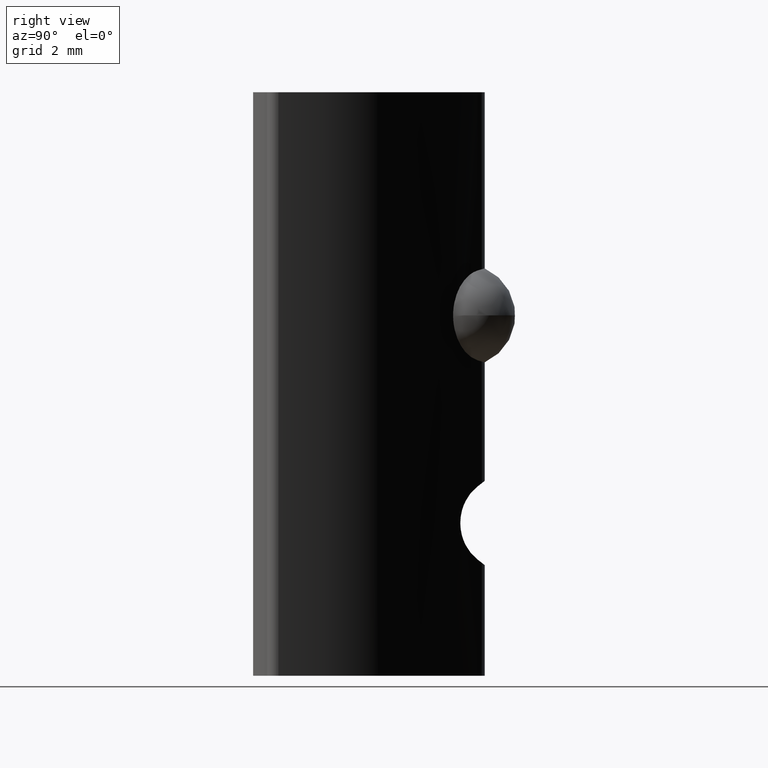
[diagram: clean part render]
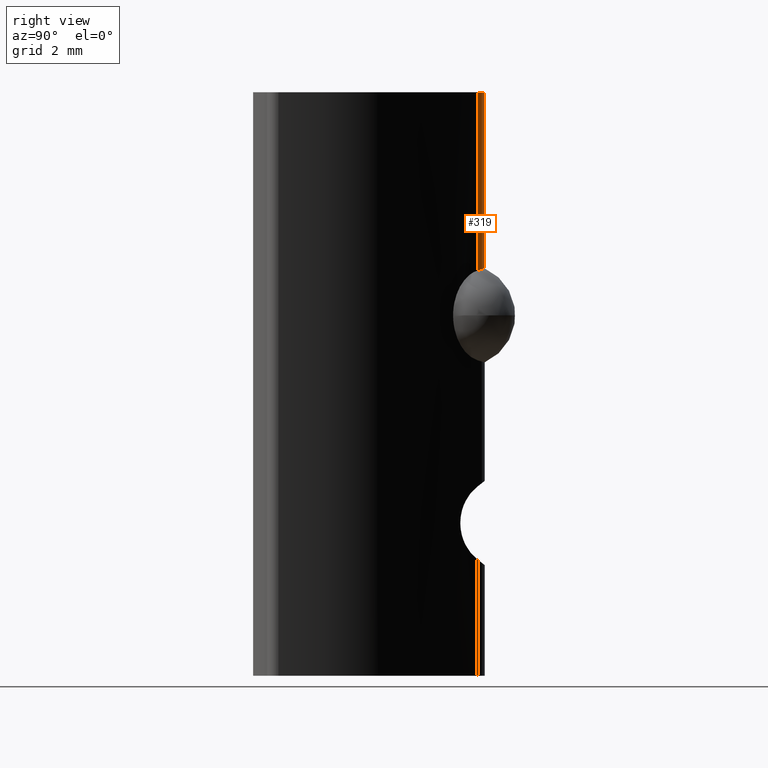
[diagram: same view with one face highlighted and labeled with its STEP entity id]
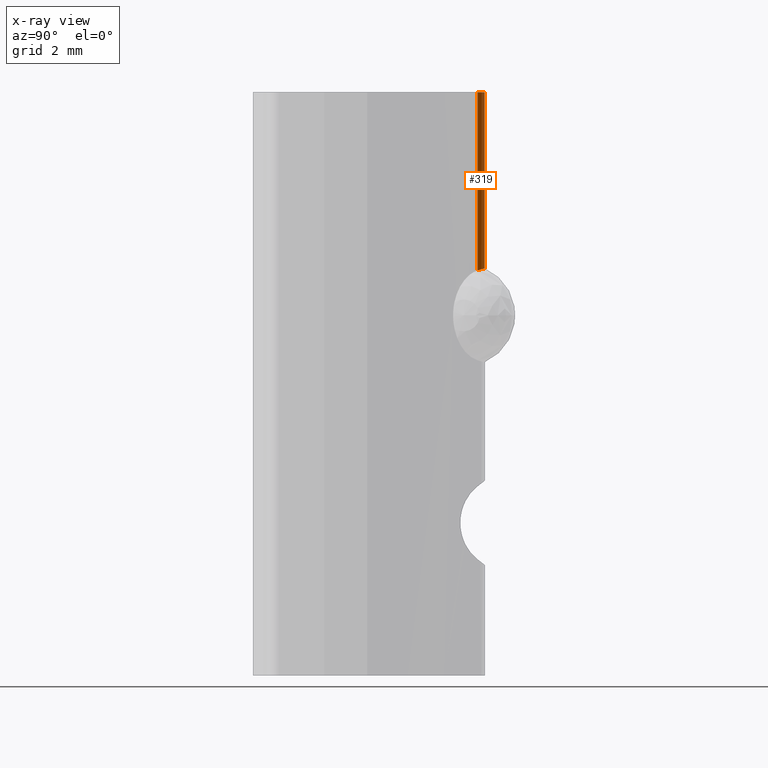
[diagram: x-ray of the same camera — body ghosted, the highlighted face saturated]
A machine part, right view. The second image highlights one B-rep face of the part: STEP entity #319.
The next image is the same camera in x-ray: the body ghosted, the highlighted face saturated — about 0% of this face is hidden behind the body in this view.
In plain terms, the highlighted cylindrical surface (edge-blend (fillet) strip) has radius 1 mm, axis along (0, 0, 1).
Its self-contained STEP definition (entity closure, byte-faithful):
#19=LINE('',#574,#34);
#22=LINE('',#664,#37);
#34=VECTOR('',#405,10.);
#37=VECTOR('',#414,10.);
#50=CYLINDRICAL_SURFACE('',#363,1.);
#64=B_SPLINE_CURVE_WITH_KNOTS('',3,(#537,#538,#539,#540,#541,#542,#543,
#544,#545,#546),.UNSPECIFIED.,.F.,.F.,(4,2,2,2,4),(0.314556690148757,0.352364797426395,
0.390172904704032,0.428421253210995,0.441554414561574),.UNSPECIFIED.);
#79=FACE_OUTER_BOUND('',#96,.T.);
#96=EDGE_LOOP('',(#252,#253,#254,#255));
#113=CIRCLE('',#364,1.);
#132=VERTEX_POINT('',#487);
#134=VERTEX_POINT('',#517);
#140=VERTEX_POINT('',#572);
#148=VERTEX_POINT('',#663);
#168=EDGE_CURVE('',#132,#134,#64,.T.);
#175=EDGE_CURVE('',#134,#140,#19,.T.);
#186=EDGE_CURVE('',#132,#148,#22,.T.);
#191=EDGE_CURVE('',#148,#140,#113,.T.);
#252=ORIENTED_EDGE('',*,*,#168,.T.);
#253=ORIENTED_EDGE('',*,*,#175,.T.);
#254=ORIENTED_EDGE('',*,*,#191,.F.);
#255=ORIENTED_EDGE('',*,*,#186,.F.);
#319=ADVANCED_FACE('',(#79),#50,.T.);
#363=AXIS2_PLACEMENT_3D('',#672,#421,#422);
#364=AXIS2_PLACEMENT_3D('',#673,#423,#424);
#405=DIRECTION('',(0.,0.,1.));
#414=DIRECTION('',(0.,0.,1.));
#421=DIRECTION('center_axis',(0.,0.,1.));
#422=DIRECTION('ref_axis',(-0.61194185594615,-0.790902753150589,0.));
#423=DIRECTION('center_axis',(0.,0.,1.));
#424=DIRECTION('ref_axis',(-0.61194185594615,-0.790902753150589,0.));
#487=CARTESIAN_POINT('',(0.611941855946153,5.9033888333115,11.8087416147203));
#517=CARTESIAN_POINT('',(-0.611941855946148,5.9033888333115,11.8087416147203));
#537=CARTESIAN_POINT('Ctrl Pts',(0.61194185594615,5.9033888333115,11.8087416147203));
#538=CARTESIAN_POINT('Ctrl Pts',(0.513863745726659,5.97927439643076,11.831211070641));
#539=CARTESIAN_POINT('Ctrl Pts',(0.393361902751296,6.04146364842269,11.8490432638928));
#540=CARTESIAN_POINT('Ctrl Pts',(0.136549867702316,6.11202958140684,11.8691632926964));
#541=CARTESIAN_POINT('Ctrl Pts',(0.00023778295362634,6.12038633545528,11.8714968279523));
#542=CARTESIAN_POINT('Ctrl Pts',(-0.251146936935633,6.08878509591516,11.8625388703289));
#543=CARTESIAN_POINT('Ctrl Pts',(-0.382008148227602,6.04627426157639,11.8505260662705));
#544=CARTESIAN_POINT('Ctrl Pts',(-0.537824460660646,5.95679294074536,11.8244767533487));
#545=CARTESIAN_POINT('Ctrl Pts',(-0.575997218675292,5.93120012610979,11.8169764434801));
#546=CARTESIAN_POINT('Ctrl Pts',(-0.61194185594615,5.9033888333115,11.8087416147203));
#572=CARTESIAN_POINT('',(-0.611941855946148,5.9033888333115,17.));
#574=CARTESIAN_POINT('',(-0.611941855946148,5.9033888333115,0.));
#663=CARTESIAN_POINT('',(0.611941855946153,5.9033888333115,17.));
#664=CARTESIAN_POINT('',(0.611941855946153,5.9033888333115,0.));
#672=CARTESIAN_POINT('Origin',(3.9154830615245E-25,5.11248608016091,0.));
#673=CARTESIAN_POINT('Origin',(3.9154830615245E-25,5.11248608016091,17.));